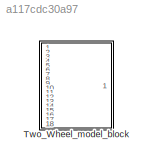
MODEL slx_a117cdc30a97
KIND model
CONFIG AbsTol = auto
CONFIG EnableMultiTasking = off
CONFIG FixedStep = auto
CONFIG MaxStep = auto
CONFIG MinStep = auto
CONFIG RelTol = 1e-3
CONFIG SampleTimeConstraint = Unconstrained
CONFIG SolverName = VariableStepAuto
CONFIG StartTime = 0.0
CONFIG StopTime = 10.0
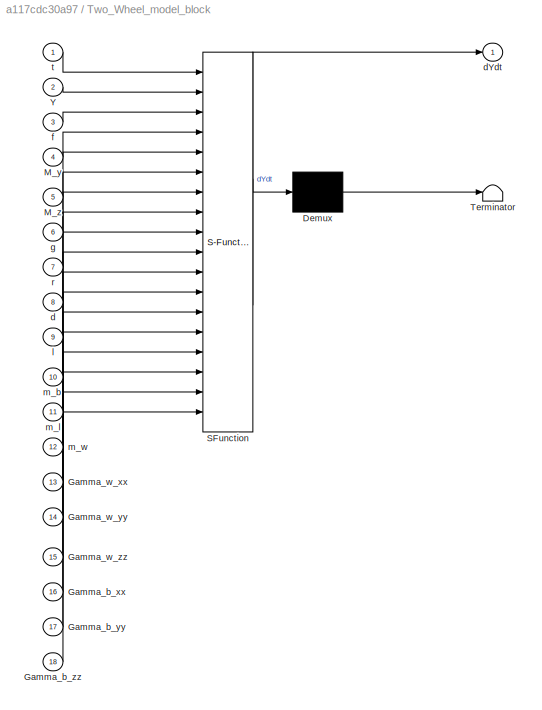
BLOCK [SubSystem] Two_Wheel_model_block
  ErrorFcn = Stateflow.Translate.translate
  PermitHierarchicalResolution = ExplicitOnly
  Ports = [18, 1]
  RequestExecContextInheritance = off
  SFBlockType = MATLAB Function
  TreatAsAtomicUnit = on
BLOCK [Demux] Two_Wheel_model_block/ Demux 
  Outputs = 1
  Ports = [1, 1]
BLOCK [S-Function] Two_Wheel_model_block/ SFunction 
  EnableBusSupport = off
  FunctionName = sf_sfun
  PortCounts = [18 2]
  Ports = [18, 2]
  SFcnIsStateOwnerBlock = off
  SFunctionDeploymentMode = off
  Tag = Stateflow S-Function 2
BLOCK [Terminator] Two_Wheel_model_block/ Terminator 
BLOCK [Inport] Two_Wheel_model_block/Gamma_b_xx
  Port = 16
BLOCK [Inport] Two_Wheel_model_block/Gamma_b_yy
  Port = 17
BLOCK [Inport] Two_Wheel_model_block/Gamma_b_zz
  Port = 18
BLOCK [Inport] Two_Wheel_model_block/Gamma_w_xx
  Port = 13
BLOCK [Inport] Two_Wheel_model_block/Gamma_w_yy
  Port = 14
BLOCK [Inport] Two_Wheel_model_block/Gamma_w_zz
  Port = 15
BLOCK [Inport] Two_Wheel_model_block/M_y
  Port = 4
BLOCK [Inport] Two_Wheel_model_block/M_z
  Port = 5
BLOCK [Inport] Two_Wheel_model_block/Y
  Port = 2
BLOCK [Inport] Two_Wheel_model_block/d
  Port = 8
BLOCK [Outport] Two_Wheel_model_block/dYdt
BLOCK [Inport] Two_Wheel_model_block/f
  Port = 3
BLOCK [Inport] Two_Wheel_model_block/g
  Port = 6
BLOCK [Inport] Two_Wheel_model_block/l
  Port = 9
BLOCK [Inport] Two_Wheel_model_block/m_b
  Port = 10
BLOCK [Inport] Two_Wheel_model_block/m_l
  Port = 11
BLOCK [Inport] Two_Wheel_model_block/m_w
  Port = 12
BLOCK [Inport] Two_Wheel_model_block/r
  Port = 7
BLOCK [Inport] Two_Wheel_model_block/t
CHART Two_Wheel_model_block states=1 transitions=1
  STATE_LABEL 'eML_blk_kernel()'
  STATE_LABEL 'SCRIPT:\nfunction dYdt = Two_Wheel_model_block(t,Y,f,M_y,M_z,g,r,d,l,m_b,m_l,m_w,Gamma_w_xx,Gamma_w_yy,Gamma_w_zz,Gamma_b_xx,Gamma_b_yy,Gamma_b_zz)\n%#codegen\n\n%    This function was generated by the Symbolic Math Toolbox version 9.0.\n%    15-Jul-2022 17:19:22\n\nt2 = Y(1);\nt3 = d.^2;\nt4 = l.^2;\nt5 = m_w.^2;\nt6 = r.^2;\nt7 = Gamma_b_yy.*Gamma_w_yy;\nt8 = sin(t2);\nt9 = Gamma_w_yy.*m_w.*t4;\nt10 = Gamma_b_...<+352ch>'
CHART  states=0 transitions=0
